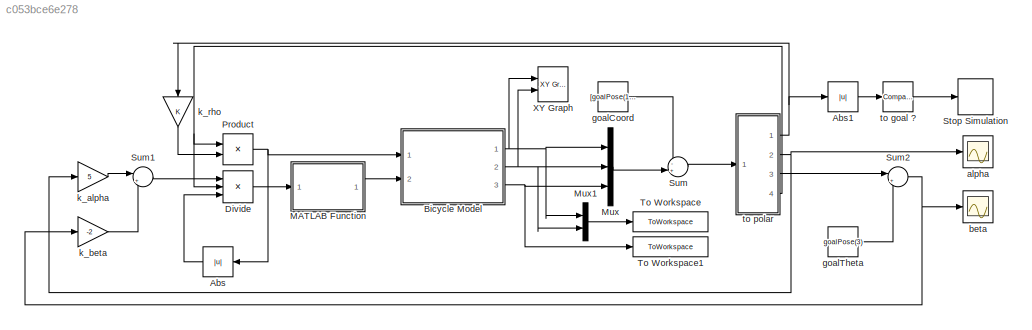
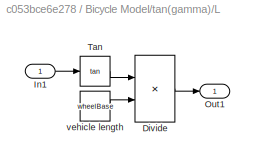
MODEL slx_c053bce6e278
KIND model
CONFIG AbsTol = auto
CONFIG EnableMultiTasking = off
CONFIG FixedStep = auto
CONFIG MaxStep = auto
CONFIG MinStep = auto
CONFIG RelTol = 1e-3
CONFIG SampleTimeConstraint = Unconstrained
CONFIG SolverName = VariableStepAuto
CONFIG StartTime = 0.0
CONFIG StopTime = 30
BLOCK [Abs] Abs
  NameLocation = top
  SaturateOnIntegerOverflow = off
BLOCK [Abs] Abs1
  SaturateOnIntegerOverflow = off
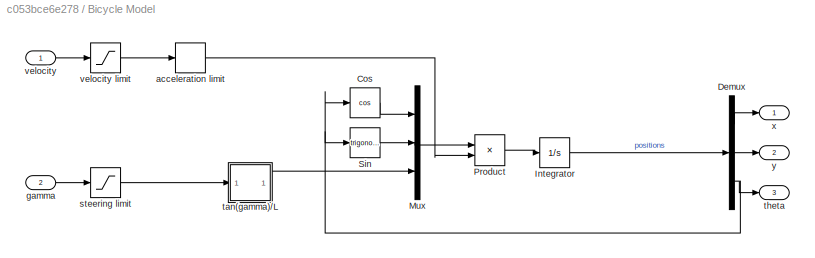
BLOCK [SubSystem] Bicycle Model
  Ports = [2, 3]
  RequestExecContextInheritance = off
BLOCK [Trigonometry] Bicycle Model/Cos
  Operator = cos
  Ports = [1, 1]
BLOCK [Demux] Bicycle Model/Demux
  Outputs = 3
  Ports = [1, 3]
BLOCK [Integrator] Bicycle Model/Integrator
  InitialCondition = initPose
  Ports = [1, 1]
BLOCK [Mux] Bicycle Model/Mux
  DisplayOption = bar
  Inputs = 3
  Ports = [3, 1]
BLOCK [Product] Bicycle Model/Product
  Ports = [2, 1]
BLOCK [Trigonometry] Bicycle Model/Sin
  Ports = [1, 1]
BLOCK [RateLimiter] Bicycle Model/acceleration limit
  FallingSlewLimit = -accelLim
  RisingSlewLimit = accelLim
  SampleTimeMode = inherited
BLOCK [Inport] Bicycle Model/gamma
  Port = 2
BLOCK [Saturate] Bicycle Model/steering limit
  LowerLimit = -steerLim
  UpperLimit = steerLim
BLOCK [SubSystem] Bicycle Model/tan(gamma)//L
  Ports = [1, 1]
  RequestExecContextInheritance = off
BLOCK [Product] Bicycle Model/tan(gamma)//L/Divide
  Inputs = */
  Ports = [2, 1]
BLOCK [Inport] Bicycle Model/tan(gamma)//L/In1
BLOCK [Outport] Bicycle Model/tan(gamma)//L/Out1
BLOCK [Trigonometry] Bicycle Model/tan(gamma)//L/Tan
  Operator = tan
  Ports = [1, 1]
BLOCK [Constant] Bicycle Model/tan(gamma)//L/vehicle length
  Value = wheelBase
BLOCK [Outport] Bicycle Model/theta
  Port = 3
BLOCK [Inport] Bicycle Model/velocity
BLOCK [Saturate] Bicycle Model/velocity limit
  LowerLimit = -speedLim
  UpperLimit = speedLim
BLOCK [Outport] Bicycle Model/x
BLOCK [Outport] Bicycle Model/y
  Port = 2
BLOCK [Product] Divide
  Inputs = **/
  Ports = [3, 1]
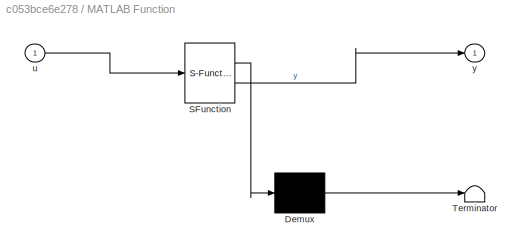
BLOCK [SubSystem] MATLAB Function
  ErrorFcn = Stateflow.Translate.translate
  PermitHierarchicalResolution = ExplicitOnly
  Ports = [1, 1]
  RequestExecContextInheritance = off
  SFBlockType = MATLAB Function
  TreatAsAtomicUnit = on
BLOCK [Demux] MATLAB Function/ Demux 
  Outputs = 1
  Ports = [1, 1]
BLOCK [S-Function] MATLAB Function/ SFunction 
  EnableBusSupport = on
  FunctionName = sf_sfun
  PortCounts = [1 2]
  Ports = [1, 2]
  SFcnIsStateOwnerBlock = off
  SFunctionDeploymentMode = off
  Tag = Stateflow S-Function 2
BLOCK [Terminator] MATLAB Function/ Terminator 
BLOCK [Inport] MATLAB Function/u
BLOCK [Outport] MATLAB Function/y
BLOCK [Mux] Mux
  DisplayOption = bar
  Inputs = 3
  Ports = [3, 1]
BLOCK [Mux] Mux1
  DisplayOption = bar
  Inputs = 2
  Ports = [2, 1]
BLOCK [Product] Product
  Ports = [2, 1]
BLOCK [Stop] Stop Simulation
BLOCK [Sum] Sum
  Inputs = -+|
  Ports = [2, 1]
BLOCK [Sum] Sum1
  Inputs = |++
  Ports = [2, 1]
BLOCK [Sum] Sum2
  Inputs = |++
  Ports = [2, 1]
BLOCK [ToWorkspace] To Workspace
  FixptAsFi = on
  MaxDataPoints = inf
  Ports = [1]
  SampleTime = -1
  SaveFormat = Timeseries
  VariableName = position
BLOCK [ToWorkspace] To Workspace1
  FixptAsFi = on
  MaxDataPoints = inf
  Ports = [1]
  SampleTime = -1
  SaveFormat = Timeseries
  VariableName = angle
BLOCK [Reference] XY Graph  REF=simulink/Sinks/XY Graph
  Ports = [2]
  SourceBlock = simulink/Sinks/XY Graph
  SourceProductBaseCode = SL
  SourceType = XY scope.
BLOCK [Scope] alpha
  Floating = off
  NumInputPorts = 1
  Ports = [1]
  ScopeSpecificationString = Simulink.scopes.TimeScopeBlockCfg('CurrentConfiguration', extmgr.ConfigurationSet(extmgr.Configuration('Core','General UI',true),extmgr.Configuration('Core','Source UI',true),extmgr.Configuration('Sources','WiredSimulink',true,'DataLoggingVariableName','ScopeData1'),extmgr.Configuration('Visuals','Time Domain',true,'SerializedDisplays',{struct('MinYLimReal','-1.84656','MaxYLimReal','0.91108','YLab...<+1399ch>
BLOCK [Scope] beta
  Floating = off
  NumInputPorts = 1
  Ports = [1]
  ScopeSpecificationString = Simulink.scopes.TimeScopeBlockCfg('CurrentConfiguration', extmgr.ConfigurationSet(extmgr.Configuration('Core','General UI',true),extmgr.Configuration('Core','Source UI',true),extmgr.Configuration('Sources','WiredSimulink',true),extmgr.Configuration('Visuals','Time Domain',true,'SerializedDisplays',{struct('MinYLimReal','-0.87796','MaxYLimReal','5.33354','YLabelReal','','MinYLimMag','0.00000','MaxY...<+1353ch>
BLOCK [Constant] goalCoord
  Value = [goalPose(1:2) 0]
BLOCK [Constant] goalTheta
  Value = goalPose(3)
BLOCK [Gain] k_alpha
  Gain = 5
BLOCK [Gain] k_beta
  Gain = -2
BLOCK [Gain] k_rho
  NameLocation = left
BLOCK [Reference] to goal ?  REF=simulink/Logic and Bit
Operations/Compare
To Constant
  Ports = [1, 1]
  SourceBlock = simulink/Logic and Bit\nOperations/Compare\nTo Constant
  SourceProductBaseCode = SL
  SourceType = Compare To Constant
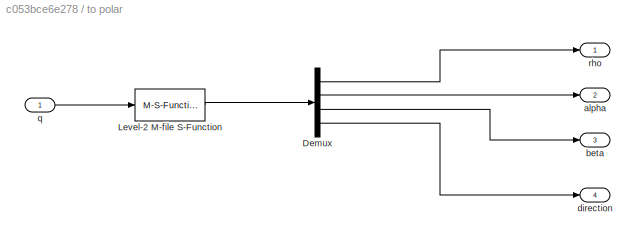
BLOCK [SubSystem] to polar
  Ports = [1, 4]
  RequestExecContextInheritance = off
BLOCK [Demux] to polar/Demux
  Ports = [1, 4]
BLOCK [M-S-Function] to polar/Level-2 M-file S-Function
  FunctionName = polar_sfunc
  Ports = [1, 1]
BLOCK [Outport] to polar/alpha
  Port = 2
  VectorParamsAs1DForOutWhenUnconnected = off
BLOCK [Outport] to polar/beta
  Port = 3
  VectorParamsAs1DForOutWhenUnconnected = off
BLOCK [Outport] to polar/direction
  Port = 4
  VectorParamsAs1DForOutWhenUnconnected = off
BLOCK [Inport] to polar/q
BLOCK [Outport] to polar/rho
  VectorParamsAs1DForOutWhenUnconnected = off
LINE Abs1:1 -> to goal ?:1
LINE Abs:1 -> Divide:3
LINE Bicycle Model/Cos:1 -> Bicycle Model/Mux:1
LINE Bicycle Model/Demux:1 -> Bicycle Model/x:1
LINE Bicycle Model/Demux:2 -> Bicycle Model/y:1
NET Bicycle Model/Demux:3 -> Bicycle Model/Cos:1, Bicycle Model/Sin:1, Bicycle Model/theta:1
LINE Bicycle Model/Integrator:1 -> Bicycle Model/Demux:1
LINE Bicycle Model/Mux:1 -> Bicycle Model/Product:1
LINE Bicycle Model/Product:1 -> Bicycle Model/Integrator:1
LINE Bicycle Model/Sin:1 -> Bicycle Model/Mux:2
LINE Bicycle Model/acceleration limit:1 -> Bicycle Model/Product:2
LINE Bicycle Model/gamma:1 -> Bicycle Model/steering limit:1
LINE Bicycle Model/steering limit:1 -> Bicycle Model/tan(gamma)//L:1
LINE Bicycle Model/tan(gamma)//L/Divide:1 -> Bicycle Model/tan(gamma)//L/Out1:1
LINE Bicycle Model/tan(gamma)//L/In1:1 -> Bicycle Model/tan(gamma)//L/Tan:1
LINE Bicycle Model/tan(gamma)//L/Tan:1 -> Bicycle Model/tan(gamma)//L/Divide:1
LINE Bicycle Model/tan(gamma)//L/vehicle length:1 -> Bicycle Model/tan(gamma)//L/Divide:2
LINE Bicycle Model/tan(gamma)//L:1 -> Bicycle Model/Mux:3
LINE Bicycle Model/velocity limit:1 -> Bicycle Model/acceleration limit:1
LINE Bicycle Model/velocity:1 -> Bicycle Model/velocity limit:1
NET Bicycle Model:1 -> Mux1:1, Mux:1, XY Graph:1
NET Bicycle Model:2 -> Mux1:2, Mux:2, XY Graph:2
NET Bicycle Model:3 -> Mux:3, To Workspace1:1
LINE Divide:1 -> MATLAB Function:1
LINE MATLAB Function:1 -> Bicycle Model:2
LINE Mux1:1 -> To Workspace:1
LINE Mux:1 -> Sum:2
NET Product:1 -> Abs:1, Bicycle Model:1
LINE Sum1:1 -> Divide:1
NET Sum2:1 -> beta:1, k_beta:1
LINE Sum:1 -> to polar:1
LINE goalCoord:1 -> Sum:1
LINE goalTheta:1 -> Sum2:2
LINE k_alpha:1 -> Sum1:1
LINE k_beta:1 -> Sum1:2
LINE k_rho:1 -> Product:2
LINE to goal ?:1 -> Stop Simulation:1
LINE to polar/Demux:1 -> to polar/rho:1
LINE to polar/Demux:2 -> to polar/alpha:1
LINE to polar/Demux:3 -> to polar/beta:1
LINE to polar/Demux:4 -> to polar/direction:1
LINE to polar/Level-2 M-file S-Function:1 -> to polar/Demux:1
LINE to polar/q:1 -> to polar/Level-2 M-file S-Function:1
NET to polar:1 -> Abs1:1, k_rho:1
NET to polar:2 -> alpha:1, k_alpha:1
LINE to polar:3 -> Sum2:1
NET to polar:4 -> Divide:2, Product:1
note: NET lines group one-source signal fan-out (src -> all destinations, sorted); 1:1 wires keep LINE
CHART MATLAB Function states=1 transitions=1
  STATE_LABEL 'eML_blk_kernel()'
  STATE_LABEL 'SCRIPT:\nfunction y = arctan(u)\n\ny = atan(u);\n'
CHART  states=0 transitions=0
